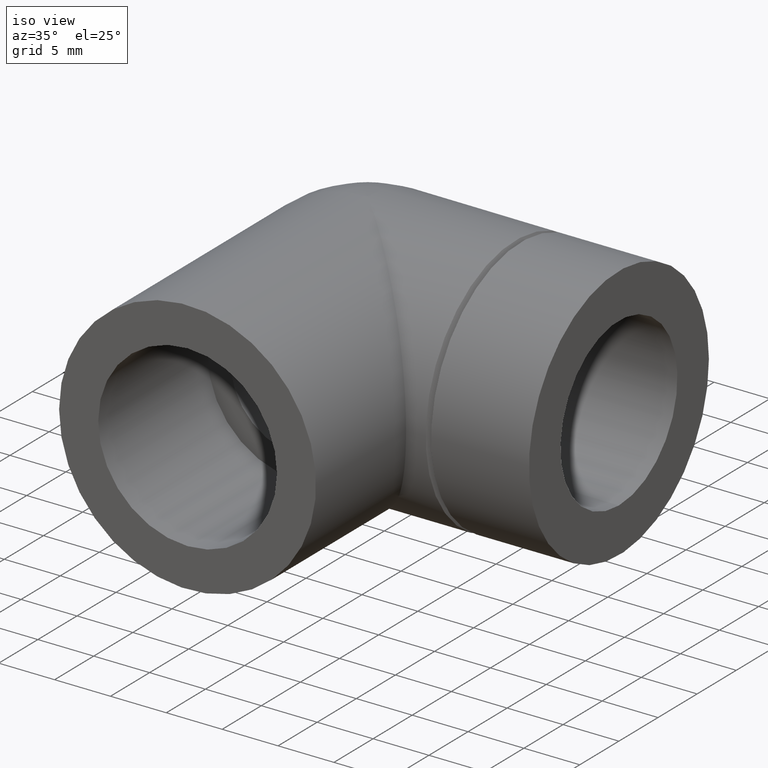
[diagram: clean part render]
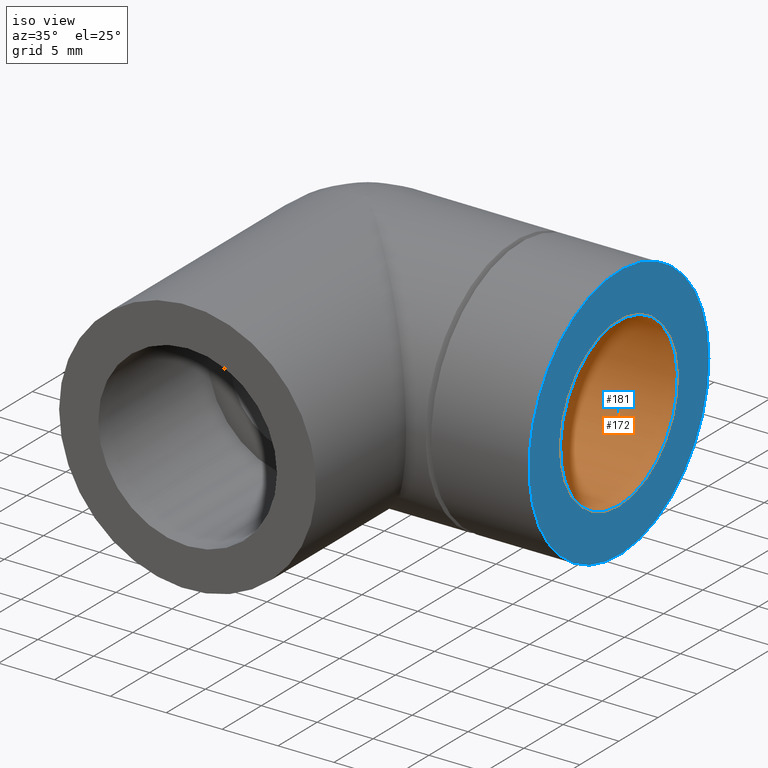
[diagram: same view with the hole feature highlighted: cylindrical wall and planar end face, labeled with their STEP entity ids]
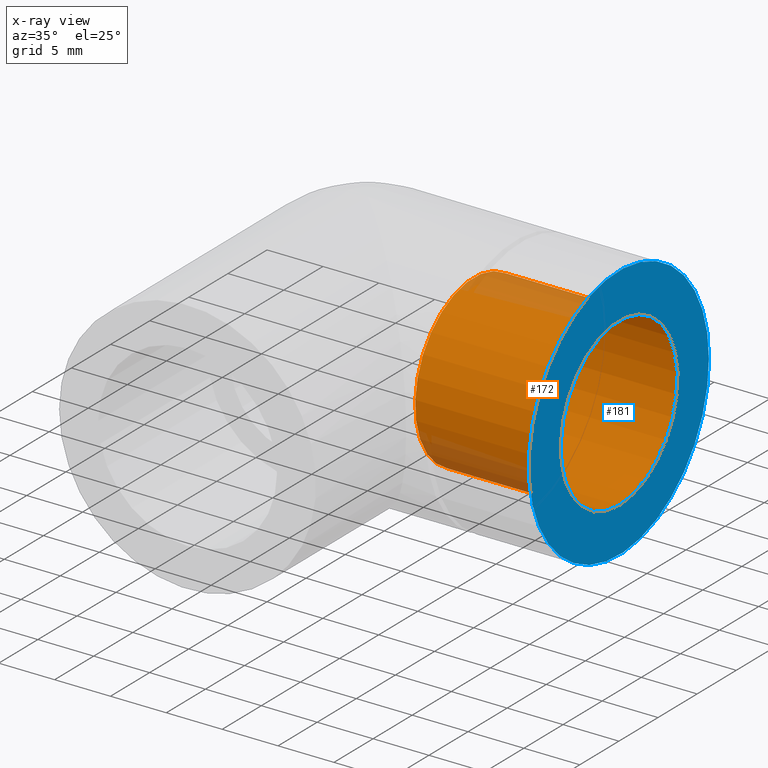
[diagram: x-ray of the same camera — body ghosted, the hole faces saturated]
A machine part, iso view. The highlighted faces form one hole feature of diameter 14.95 mm: the cylindrical wall (entity #172, orange) and its adjacent planar end face (entity #181, blue) — they share a circular edge in the B-rep.
The next image is the same camera in x-ray (body ghosted, the hole faces saturated) — the bore reads through the body.
Wall:
#29=FACE_BOUND('',#64,.T.);
#43=FACE_OUTER_BOUND('',#63,.T.);
#63=EDGE_LOOP('',(#138));
#64=EDGE_LOOP('',(#139));
#88=CIRCLE('',#196,7.475);
#89=CIRCLE('',#197,7.475);
#103=VERTEX_POINT('',#298);
#104=VERTEX_POINT('',#300);
#118=EDGE_CURVE('',#103,#103,#88,.T.);
#119=EDGE_CURVE('',#104,#104,#89,.T.);
#138=ORIENTED_EDGE('',*,*,#118,.T.);
#139=ORIENTED_EDGE('',*,*,#119,.F.);
#163=CYLINDRICAL_SURFACE('',#195,7.475);
#172=ADVANCED_FACE('',(#43,#29),#163,.F.);
#195=AXIS2_PLACEMENT_3D('',#297,#239,#240);
#196=AXIS2_PLACEMENT_3D('',#299,#241,#242);
#197=AXIS2_PLACEMENT_3D('',#301,#243,#244);
#239=DIRECTION('center_axis',(-1.,0.,0.));
#240=DIRECTION('ref_axis',(0.,0.,1.));
#241=DIRECTION('center_axis',(-1.,0.,0.));
#242=DIRECTION('ref_axis',(0.,0.,1.));
#243=DIRECTION('center_axis',(-1.,0.,0.));
#244=DIRECTION('ref_axis',(0.,0.,1.));
#297=CARTESIAN_POINT('Origin',(22.5,0.,0.));
#298=CARTESIAN_POINT('',(9.5,9.15423482362646E-16,-7.475));
#299=CARTESIAN_POINT('Origin',(9.5,0.,0.));
#300=CARTESIAN_POINT('',(22.5,9.15423482362646E-16,-7.475));
#301=CARTESIAN_POINT('Origin',(22.5,0.,0.));
End face:
#22=PLANE('',#214);
#37=FACE_BOUND('',#81,.T.);
#52=FACE_OUTER_BOUND('',#80,.T.);
#80=EDGE_LOOP('',(#158));
#81=EDGE_LOOP('',(#159));
#89=CIRCLE('',#197,7.475);
#96=CIRCLE('',#213,11.5);
#104=VERTEX_POINT('',#300);
#111=VERTEX_POINT('',#323);
#119=EDGE_CURVE('',#104,#104,#89,.T.);
#127=EDGE_CURVE('',#111,#111,#96,.T.);
#158=ORIENTED_EDGE('',*,*,#127,.T.);
#159=ORIENTED_EDGE('',*,*,#119,.T.);
#181=ADVANCED_FACE('',(#52,#37),#22,.T.);
#197=AXIS2_PLACEMENT_3D('',#301,#243,#244);
#213=AXIS2_PLACEMENT_3D('',#324,#275,#276);
#214=AXIS2_PLACEMENT_3D('',#325,#277,#278);
#243=DIRECTION('center_axis',(-1.,0.,0.));
#244=DIRECTION('ref_axis',(0.,0.,1.));
#275=DIRECTION('center_axis',(1.,0.,0.));
#276=DIRECTION('ref_axis',(0.,0.,-1.));
#277=DIRECTION('center_axis',(1.,0.,0.));
#278=DIRECTION('ref_axis',(0.,0.,-1.));
#300=CARTESIAN_POINT('',(22.5,9.15423482362646E-16,-7.475));
#301=CARTESIAN_POINT('Origin',(22.5,0.,0.));
#323=CARTESIAN_POINT('',(22.5,11.5,0.));
#324=CARTESIAN_POINT('Origin',(22.5,0.,0.));
#325=CARTESIAN_POINT('Origin',(22.5,0.,0.));